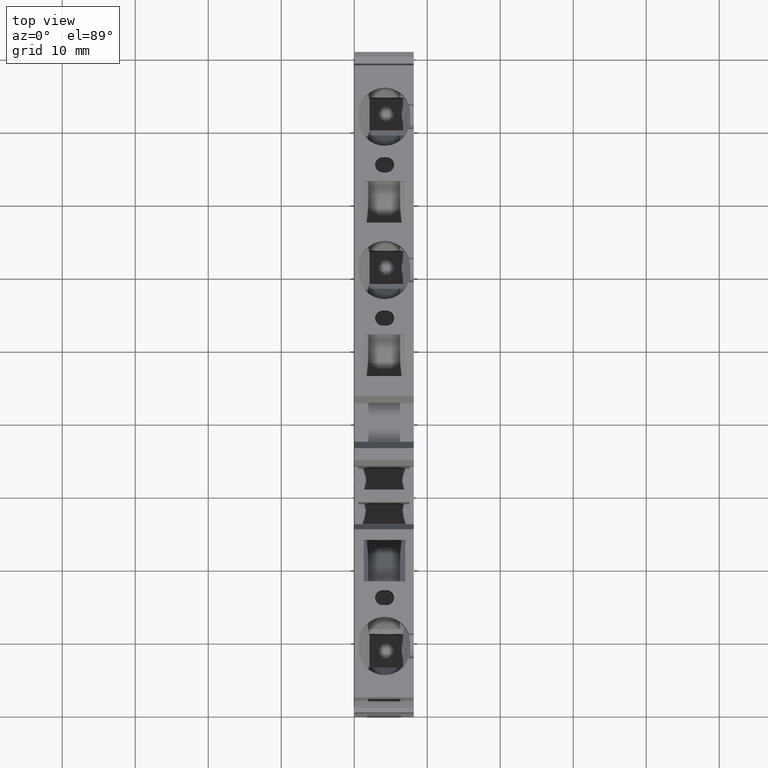
[diagram: clean part render]
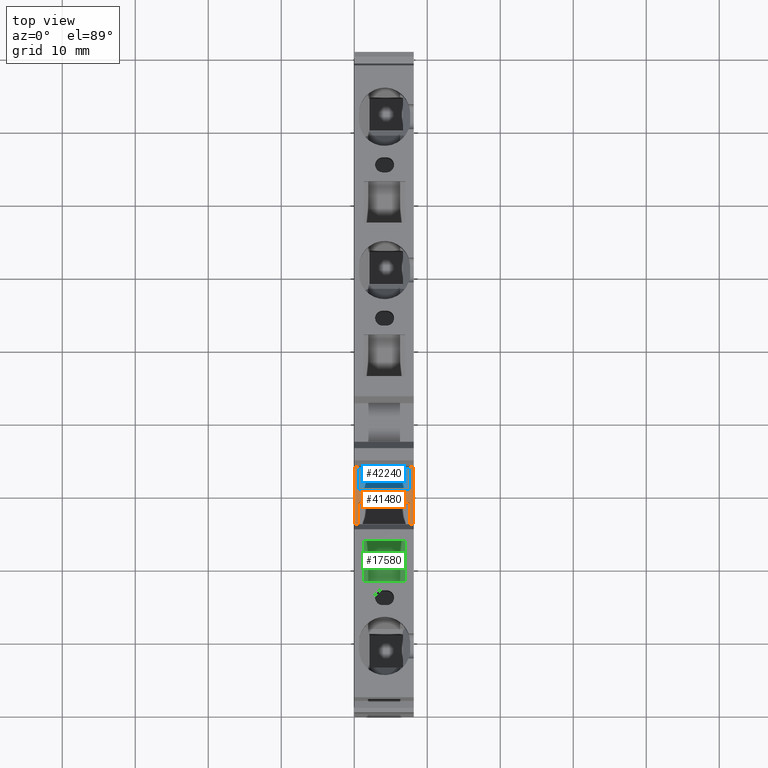
[diagram: same view with three faces highlighted in distinct colors, each labeled with its STEP entity id]
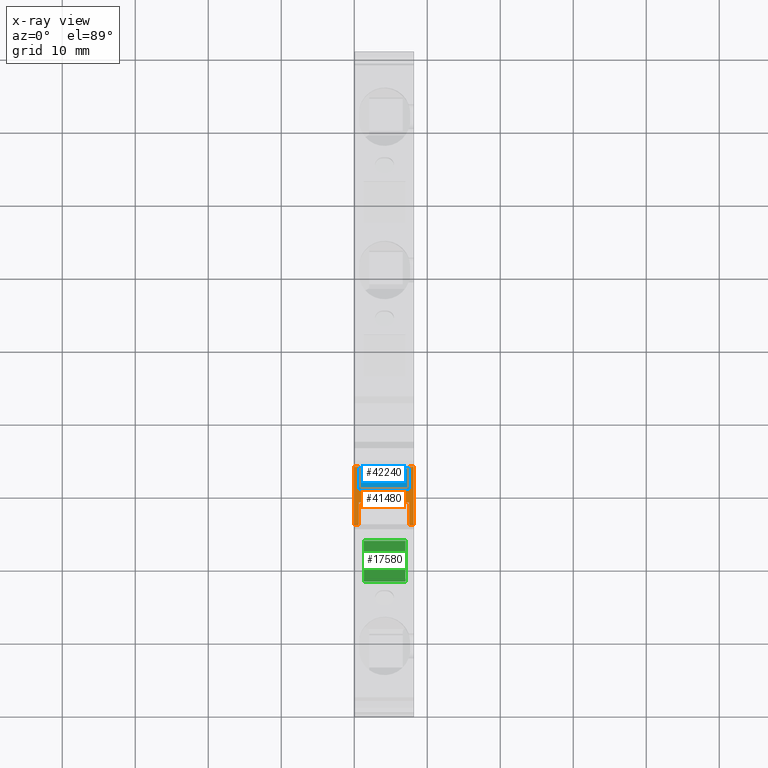
[diagram: x-ray of the same camera — body ghosted, the three highlighted faces saturated]
A machine part, top view with three faces highlighted in distinct colors.
The next image is the same camera in x-ray (body ghosted, the three faces saturated) — at least one of them is partly hidden behind the body in this view.
Their STEP definitions:

[orange] entity #41480 — the highlighted planar face has unit normal (0, 0, -1).
#3400=CARTESIAN_POINT('',(-7.06783277832459,-11.1999999999897,53.67));
#3410=VERTEX_POINT('',#3400);
#3440=CARTESIAN_POINT('',(-7.06783277832458,-11.1999999999897,53.67));
#3450=DIRECTION('',(1.,4.44089209850063E-16,0.));
#3460=VECTOR('',#3450,1.);
#3470=LINE('',#3440,#3460);
#3480=CARTESIAN_POINT('',(0.932167221675208,-11.1999999999897,53.67));
#3490=VERTEX_POINT('',#3480);
#3500=EDGE_CURVE('',#3410,#3490,#3470,.T.);
#8410=CARTESIAN_POINT('',(0.932167221675208,-11.1999999999897,45.52));
#8420=VERTEX_POINT('',#8410);
#8450=CARTESIAN_POINT('',(-19.5576683774103,-11.1999999999897,45.52));
#8460=DIRECTION('',(1.,4.44089209850063E-16,0.));
#8470=VECTOR('',#8460,1.);
#8480=LINE('',#8450,#8470);
#8490=CARTESIAN_POINT('',(-7.06783277832459,-11.1999999999897,45.52));
#8500=VERTEX_POINT('',#8490);
#8510=EDGE_CURVE('',#8500,#8420,#8480,.T.);
#40380=CARTESIAN_POINT('',(-19.5576683774103,-11.1999999999897,46.095));
#40390=DIRECTION('',(-1.,-4.44089209850063E-16,0.));
#40400=VECTOR('',#40390,1.);
#40410=LINE('',#40380,#40400);
#40420=CARTESIAN_POINT('',(-3.91783277830515,-11.1999999999897,46.095));
#40430=VERTEX_POINT('',#40420);
#40440=CARTESIAN_POINT('',(-7.06783277832459,-11.1999999999897,46.095));
#40450=VERTEX_POINT('',#40440);
#40460=EDGE_CURVE('',#40430,#40450,#40410,.T.);
#40800=CARTESIAN_POINT('',(-7.06783277832458,-11.1999999999897,53.67));
#40810=DIRECTION('',(4.44089209850063E-16,-1.,0.));
#40820=DIRECTION('',(-1.,-4.44089209850063E-16,0.));
#40830=AXIS2_PLACEMENT_3D('',#40800,#40810,#40820);
#40840=PLANE('',#40830);
#40850=CARTESIAN_POINT('',(-19.5576683774103,-11.1999999999897,46.095));
#40860=DIRECTION('',(-1.,-4.44089209850063E-16,0.));
#40870=VECTOR('',#40860,1.);
#40880=LINE('',#40850,#40870);
#40890=CARTESIAN_POINT('',(0.932167221675208,-11.1999999999897,46.095));
#40900=VERTEX_POINT('',#40890);
#40910=CARTESIAN_POINT('',(-2.21783277834345,-11.1999999999897,46.095));
#40920=VERTEX_POINT('',#40910);
#40930=EDGE_CURVE('',#40900,#40920,#40880,.T.);
#40940=ORIENTED_EDGE('',*,*,#40930,.F.);
#40950=CARTESIAN_POINT('',(-2.21783277834345,-11.1999999999897,53.67));
#40960=DIRECTION('',(-5.7748823432136E-46,-3.30597686636373E-61,-1.));
#40970=VECTOR('',#40960,1.);
#40980=LINE('',#40950,#40970);
#40990=CARTESIAN_POINT('',(-2.21783277834345,-11.1999999999897,53.095));
#41000=VERTEX_POINT('',#40990);
#41010=EDGE_CURVE('',#41000,#40920,#40980,.T.);
#41020=ORIENTED_EDGE('',*,*,#41010,.T.);
#41030=CARTESIAN_POINT('',(-19.5576683774103,-11.1999999999897,53.095));
#41040=DIRECTION('',(-1.,-4.44089209850063E-16,0.));
#41050=VECTOR('',#41040,1.);
#41060=LINE('',#41030,#41050);
#41070=CARTESIAN_POINT('',(0.932167221675208,-11.1999999999897,53.095));
#41080=VERTEX_POINT('',#41070);
#41090=EDGE_CURVE('',#41080,#41000,#41060,.T.);
#41100=ORIENTED_EDGE('',*,*,#41090,.T.);
#41110=CARTESIAN_POINT('',(0.932167221675208,-11.1999999999897,53.67));
#41120=DIRECTION('',(0.,0.,-1.));
#41130=VECTOR('',#41120,1.);
#41140=LINE('',#41110,#41130);
#41150=EDGE_CURVE('',#3490,#41080,#41140,.T.);
#41160=ORIENTED_EDGE('',*,*,#41150,.T.);
#41170=ORIENTED_EDGE('',*,*,#3500,.T.);
#41180=CARTESIAN_POINT('',(-7.06783277832459,-11.1999999999897,53.67));
#41190=DIRECTION('',(0.,0.,-1.));
#41200=VECTOR('',#41190,1.);
#41210=LINE('',#41180,#41200);
#41220=CARTESIAN_POINT('',(-7.06783277832458,-11.1999999999897,53.095));
#41230=VERTEX_POINT('',#41220);
#41240=EDGE_CURVE('',#3410,#41230,#41210,.T.);
#41250=ORIENTED_EDGE('',*,*,#41240,.F.);
#41260=CARTESIAN_POINT('',(-19.5576683774103,-11.1999999999897,53.095));
#41270=DIRECTION('',(-1.,-4.44089209850063E-16,0.));
#41280=VECTOR('',#41270,1.);
#41290=LINE('',#41260,#41280);
#41300=CARTESIAN_POINT('',(-3.91783277830515,-11.1999999999897,53.095));
#41310=VERTEX_POINT('',#41300);
#41320=EDGE_CURVE('',#41310,#41230,#41290,.T.);
#41330=ORIENTED_EDGE('',*,*,#41320,.T.);
#41340=CARTESIAN_POINT('',(-3.91783277830515,-11.1999999999897,53.67));
#41350=DIRECTION('',(0.,0.,-1.));
#41360=VECTOR('',#41350,1.);
#41370=LINE('',#41340,#41360);
#41380=EDGE_CURVE('',#41310,#40430,#41370,.T.);
#41390=ORIENTED_EDGE('',*,*,#41380,.F.);
#41400=ORIENTED_EDGE('',*,*,#40460,.F.);
#41410=EDGE_CURVE('',#40450,#8500,#41210,.T.);
#41420=ORIENTED_EDGE('',*,*,#41410,.F.);
#41430=ORIENTED_EDGE('',*,*,#8510,.F.);
#41440=EDGE_CURVE('',#40900,#8420,#41140,.T.);
#41450=ORIENTED_EDGE('',*,*,#41440,.T.);
#41460=EDGE_LOOP('',(#41450,#41430,#41420,#41400,#41390,#41330,#41250,
#41170,#41160,#41100,#41020,#40940));
#41470=FACE_OUTER_BOUND('',#41460,.T.);
#41480=ADVANCED_FACE('',(#41470),#40840,.F.);

[blue] entity #42240 — the highlighted planar face has unit normal (0, 0, 1).
#41650=CARTESIAN_POINT('',(0.932167221675215,-27.1499999999882,46.095));
#41660=VERTEX_POINT('',#41650);
#41690=CARTESIAN_POINT('',(-3.06783277832469,-27.1499999999882,46.095));
#41700=DIRECTION('',(-1.,0.,0.));
#41710=VECTOR('',#41700,1.);
#41720=LINE('',#41690,#41710);
#41730=CARTESIAN_POINT('',(-2.21783277834359,-27.1499999999882,46.095));
#41740=VERTEX_POINT('',#41730);
#41750=EDGE_CURVE('',#41660,#41740,#41720,.T.);
#41940=CARTESIAN_POINT('',(19.6079195699101,-27.1499999999882,
48.0101759537942));
#41950=DIRECTION('',(0.,1.,-0.));
#41960=DIRECTION('',(-1.,0.,0.));
#41970=AXIS2_PLACEMENT_3D('',#41940,#41950,#41960);
#41980=PLANE('',#41970);
#41990=CARTESIAN_POINT('',(-2.21783277834359,-27.1499999999882,49.595));
#42000=DIRECTION('',(-5.7783836649821E-46,-1.94469227433161E-62,-1.));
#42010=VECTOR('',#42000,1.);
#42020=LINE('',#41990,#42010);
#42030=CARTESIAN_POINT('',(-2.21783277834358,-27.1499999999882,
53.0637822173509));
#42040=VERTEX_POINT('',#42030);
#42050=EDGE_CURVE('',#42040,#41740,#42020,.T.);
#42060=ORIENTED_EDGE('',*,*,#42050,.F.);
#42070=ORIENTED_EDGE('',*,*,#41750,.T.);
#42080=CARTESIAN_POINT('',(0.932167221675208,-27.1499999999882,49.595));
#42090=DIRECTION('',(0.,0.,1.));
#42100=VECTOR('',#42090,1.);
#42110=LINE('',#42080,#42100);
#42120=CARTESIAN_POINT('',(0.932167221675208,-27.1499999999882,
53.0637822173509));
#42130=VERTEX_POINT('',#42120);
#42140=EDGE_CURVE('',#41660,#42130,#42110,.T.);
#42150=ORIENTED_EDGE('',*,*,#42140,.F.);
#42160=CARTESIAN_POINT('',(-3.06783277832469,-27.1499999999882,
53.0637822173509));
#42170=DIRECTION('',(-1.,0.,6.93889390392761E-18));
#42180=VECTOR('',#42170,1.);
#42190=LINE('',#42160,#42180);
#42200=EDGE_CURVE('',#42130,#42040,#42190,.T.);
#42210=ORIENTED_EDGE('',*,*,#42200,.F.);
#42220=EDGE_LOOP('',(#42210,#42150,#42070,#42060));
#42230=FACE_OUTER_BOUND('',#42220,.T.);
#42240=ADVANCED_FACE('',(#42230),#41980,.T.);

[green] entity #17580 — the highlighted planar face has unit normal (0, 0.7071, 0.7071).
#17000=CARTESIAN_POINT('',(-9.21783277832449,-10.910050506327,46.82));
#17010=VERTEX_POINT('',#17000);
#17040=CARTESIAN_POINT('',(-16.9278832846633,-3.19999999998817,46.82));
#17050=DIRECTION('',(0.707106781186548,-0.707106781186548,0.));
#17060=VECTOR('',#17050,1.);
#17070=LINE('',#17040,#17060);
#17080=CARTESIAN_POINT('',(-14.9178327783245,-5.210050506327,46.82));
#17090=VERTEX_POINT('',#17080);
#17100=EDGE_CURVE('',#17090,#17010,#17070,.T.);
#17280=CARTESIAN_POINT('',(-13.0982120259601,-7.02967125869143,
46.2499976));
#17290=DIRECTION('',(0.707106781186548,0.707106781186547,0.));
#17300=DIRECTION('',(0.707106781186548,-0.707106781186548,0.));
#17310=AXIS2_PLACEMENT_3D('',#17280,#17290,#17300);
#17320=PLANE('',#17310);
#17330=CARTESIAN_POINT('',(-9.2178327783245,-10.910050506327,
47.5166423668513));
#17340=DIRECTION('',(0.,0.,-1.));
#17350=VECTOR('',#17340,1.);
#17360=LINE('',#17330,#17350);
#17370=CARTESIAN_POINT('',(-9.21783277832449,-10.910050506327,52.52));
#17380=VERTEX_POINT('',#17370);
#17390=EDGE_CURVE('',#17380,#17010,#17360,.T.);
#17400=ORIENTED_EDGE('',*,*,#17390,.T.);
#17410=CARTESIAN_POINT('',(-16.9278832846633,-3.19999999998817,52.52));
#17420=DIRECTION('',(0.707106781186548,-0.707106781186548,0.));
#17430=VECTOR('',#17420,1.);
#17440=LINE('',#17410,#17430);
#17450=CARTESIAN_POINT('',(-14.9178327783245,-5.210050506327,52.52));
#17460=VERTEX_POINT('',#17450);
#17470=EDGE_CURVE('',#17460,#17380,#17440,.T.);
#17480=ORIENTED_EDGE('',*,*,#17470,.T.);
#17490=CARTESIAN_POINT('',(-14.9178327783245,-5.210050506327,
47.5166423668513));
#17500=DIRECTION('',(0.,0.,1.));
#17510=VECTOR('',#17500,1.);
#17520=LINE('',#17490,#17510);
#17530=EDGE_CURVE('',#17090,#17460,#17520,.T.);
#17540=ORIENTED_EDGE('',*,*,#17530,.T.);
#17550=ORIENTED_EDGE('',*,*,#17100,.F.);
#17560=EDGE_LOOP('',(#17550,#17540,#17480,#17400));
#17570=FACE_OUTER_BOUND('',#17560,.T.);
#17580=ADVANCED_FACE('',(#17570),#17320,.T.);